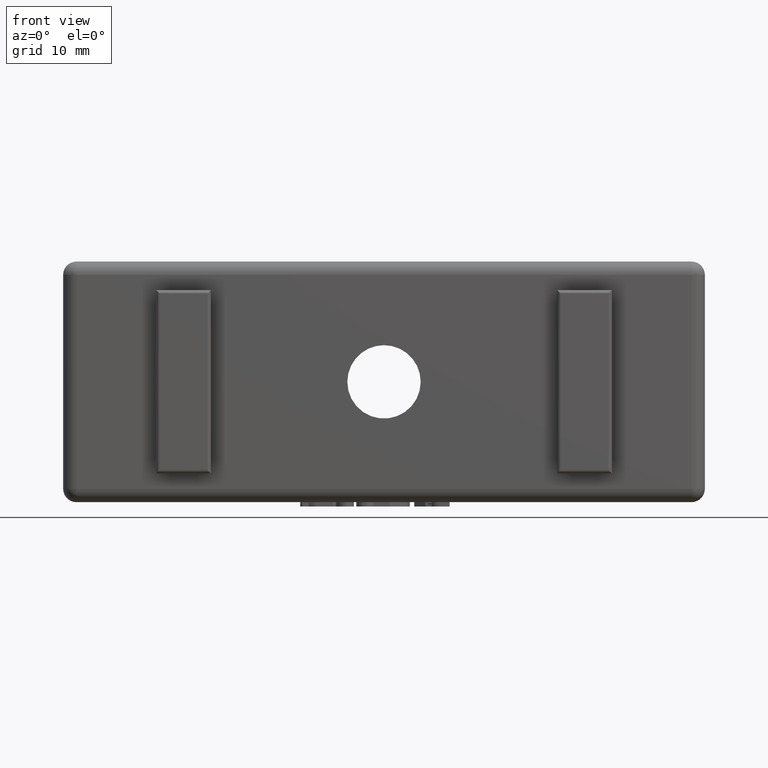
[diagram: clean part render]
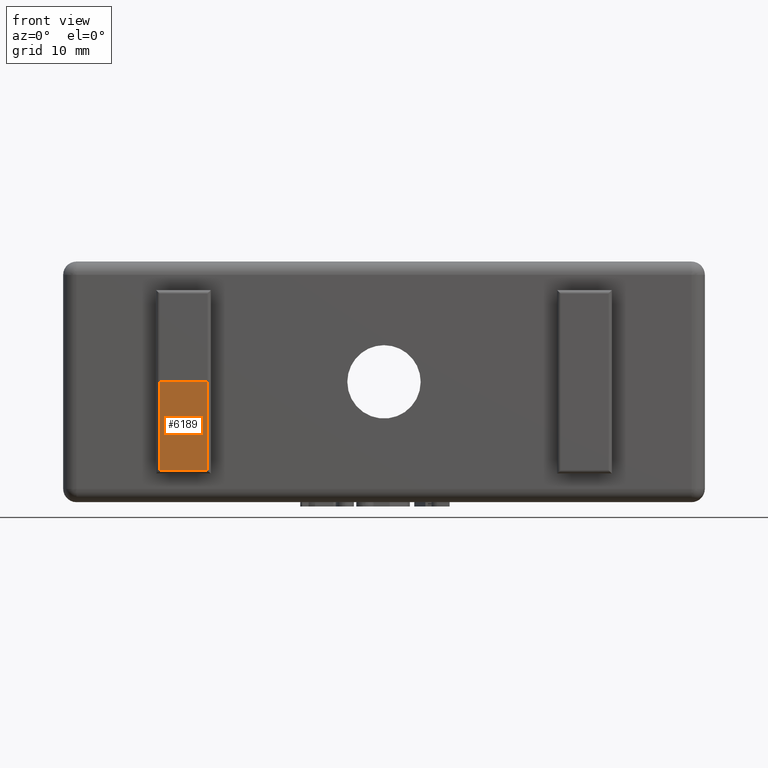
[diagram: same view with one face highlighted and labeled with its STEP entity id]
A machine part, front view. The second image highlights one B-rep face of the part: STEP entity #6189.
In plain terms, the highlighted planar face has unit normal (-0, 1, 0).
Its self-contained STEP definition (entity closure, byte-faithful):
#509 = EDGE_CURVE ( 'NONE', #5069, #5203, #1933, .T. ) ;
#520 = EDGE_CURVE ( 'NONE', #5024, #5100, #1947, .T. ) ;
#521 = EDGE_CURVE ( 'NONE', #5100, #5203, #1954, .T. ) ;
#522 = EDGE_CURVE ( 'NONE', #5069, #5024, #1958, .T. ) ;
#1933 = LINE ( 'NONE', #3854, #1936 ) ;
#1936 = VECTOR ( 'NONE', #3842, 39.37007874015748100 ) ;
#1940 = VECTOR ( 'NONE', #3870, 39.37007874015748100 ) ;
#1947 = LINE ( 'NONE', #3869, #1940 ) ;
#1954 = LINE ( 'NONE', #3888, #1956 ) ;
#1956 = VECTOR ( 'NONE', #3875, 39.37007874015748100 ) ;
#1958 = LINE ( 'NONE', #3874, #1959 ) ;
#1959 = VECTOR ( 'NONE', #3873, 39.37007874015748100 ) ;
#2109 = CARTESIAN_POINT ( 'NONE',  ( -0.8256250000000001600, -0.1749999999999996800, 0.0000000000000000000 ) ) ;
#2175 = CARTESIAN_POINT ( 'NONE',  ( -0.8256250000000001600, -0.1749999999999996800, -0.4128750000000001600 ) ) ;
#2279 = CARTESIAN_POINT ( 'NONE',  ( -1.049374999999999900, -0.1749999999999999300, -0.4128750000000001600 ) ) ;
#2583 = CARTESIAN_POINT ( 'NONE',  ( -1.049374999999999900, -0.1749999999999999300, 0.0000000000000000000 ) ) ;
#2834 = AXIS2_PLACEMENT_3D ( 'NONE', #5797, #5804, #5805 ) ;
#3842 = DIRECTION ( 'NONE',  ( 1.000000000000000000, 1.071312938691868600E-015, 0.0000000000000000000 ) ) ;
#3854 = CARTESIAN_POINT ( 'NONE',  ( -1.064999999999999900, -0.1749999999999999300, 0.0000000000000000000 ) ) ;
#3869 = CARTESIAN_POINT ( 'NONE',  ( -1.064999999999999900, -0.1749999999999999300, -0.4128750000000002100 ) ) ;
#3870 = DIRECTION ( 'NONE',  ( 1.000000000000000000, 1.071312938691868600E-015, 1.282557743504349300E-016 ) ) ;
#3873 = DIRECTION ( 'NONE',  ( 0.0000000000000000000, 0.0000000000000000000, -1.000000000000000000 ) ) ;
#3874 = CARTESIAN_POINT ( 'NONE',  ( -1.049374999999999900, -0.1749999999999999300, 0.5625000000000000000 ) ) ;
#3875 = DIRECTION ( 'NONE',  ( -0.0000000000000000000, -0.0000000000000000000, 1.000000000000000000 ) ) ;
#3888 = CARTESIAN_POINT ( 'NONE',  ( -0.8256250000000001600, -0.1749999999999996800, 0.5625000000000000000 ) ) ;
#4490 = FACE_OUTER_BOUND ( 'NONE', #10225, .T. ) ;
#5024 = VERTEX_POINT ( 'NONE', #2279 ) ;
#5069 = VERTEX_POINT ( 'NONE', #2583 ) ;
#5100 = VERTEX_POINT ( 'NONE', #2175 ) ;
#5203 = VERTEX_POINT ( 'NONE', #2109 ) ;
#5797 = CARTESIAN_POINT ( 'NONE',  ( -1.064999999999999900, -0.1749999999999999300, 0.5625000000000000000 ) ) ;
#5801 = PLANE ( 'NONE',  #2834 ) ;
#5804 = DIRECTION ( 'NONE',  ( -1.071312938691868600E-015, 1.000000000000000000, 0.0000000000000000000 ) ) ;
#5805 = DIRECTION ( 'NONE',  ( -1.000000000000000000, -1.071312938691868600E-015, 0.0000000000000000000 ) ) ;
#6010 = ORIENTED_EDGE ( 'NONE', *, *, #522, .T. ) ;
#6189 = ADVANCED_FACE ( 'NONE', ( #4490 ), #5801, .F. ) ;
#7390 = ORIENTED_EDGE ( 'NONE', *, *, #509, .F. ) ;
#7433 = ORIENTED_EDGE ( 'NONE', *, *, #520, .T. ) ;
#7443 = ORIENTED_EDGE ( 'NONE', *, *, #521, .T. ) ;
#10225 = EDGE_LOOP ( 'NONE', ( #7390, #6010, #7433, #7443 ) ) ;